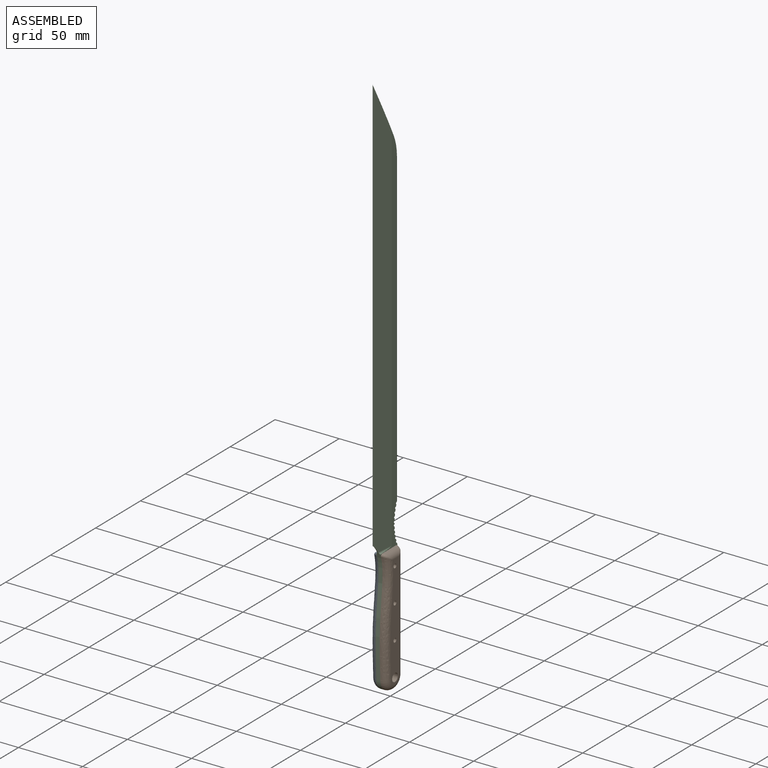
[diagram: assembled view]
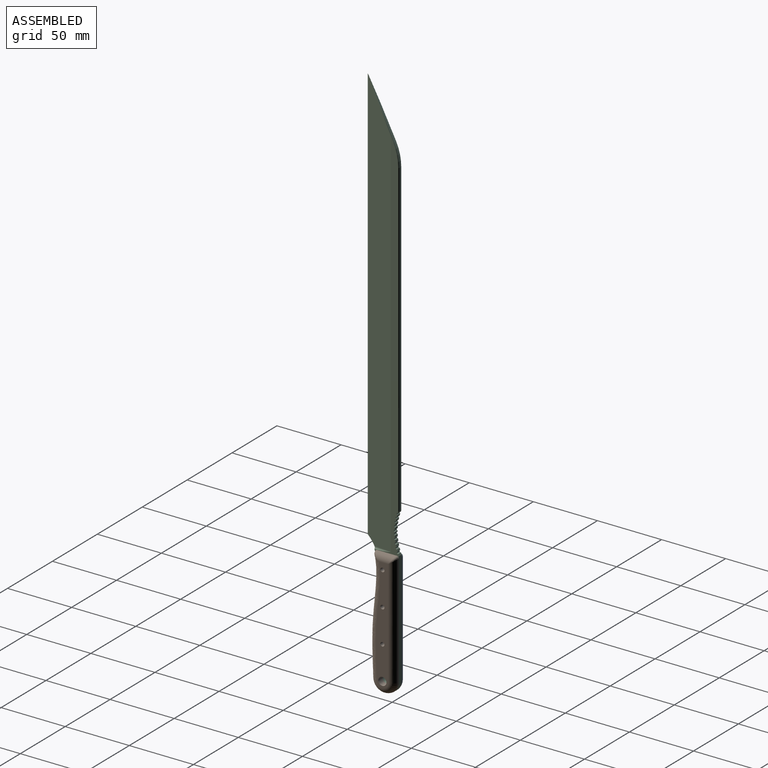
[diagram: assembled view, second angle]
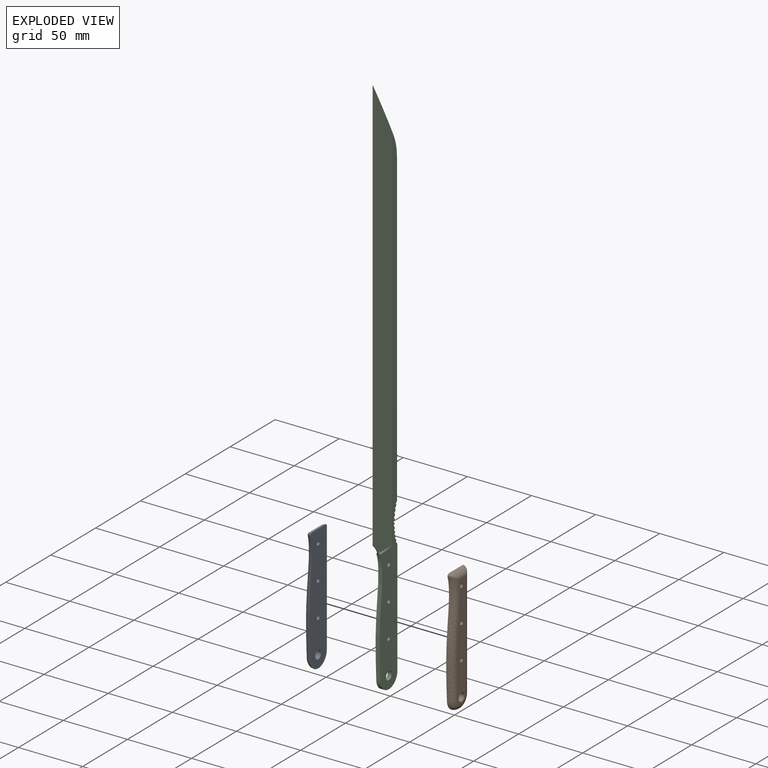
[diagram: exploded view]
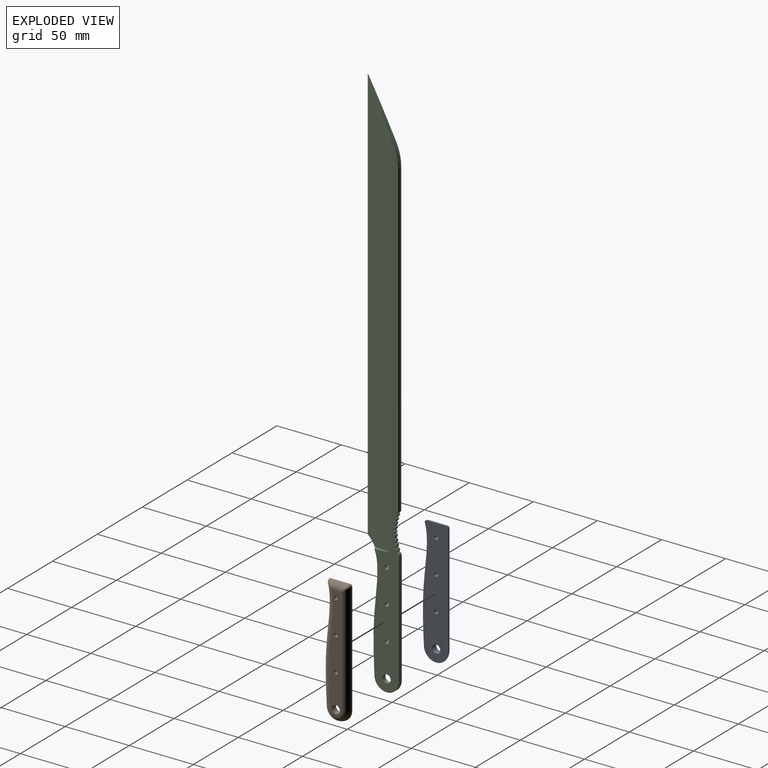
[diagram: exploded view, second angle]
ASSEMBLY  parts=3 mates=2
PART A: 13 faces, bbox 8.9x24.5x103.1 mm
  f0: plane 88.29x9.67mm, normal (-1,0,0), area 682.4mm2, adj f2,f3,f4,f5,f6,f7,f8,f9
  f1: plane 102.26x24.48mm, normal (1,0,0), area 1735.2mm2, adj f2,f3,f4,f5,f6,f7,f8,f9
  f2: cylinder r=1.59mm len=4.76mm, axis (1,0,0), area 47.5mm2, adj f0,f1
  f3: cylinder r=1.59mm len=4.76mm, axis (1,0,0), area 47.5mm2, adj f0,f1
  f4: cylinder r=1.59mm len=4.76mm, axis (1,0,0), area 47.5mm2, adj f0,f1
  f5: cylinder r=3.17mm len=6.35mm, axis (1,0,0), area 95mm2, adj f0,f1
  f6: torus R=4.45mm, axis (-1,0,0), area 183mm2, adj f0,f1,f7,f8
  f7: torus R=6.66mm, axis (1,0,0), area 1.1mm2, adj f0,f1,f6,f9
  f8: cylinder r=5.08mm len=87.31mm, axis (0,0,1), area 655.6mm2, adj f0,f1,f6,f10
  f9: bspline ~93.34x8.2mm, area 654.5mm2, adj f0,f1,f7,f11
  f10: bspline ~5.07x5.07mm, area 8.2mm2, adj f1,f8,f12
  f11: bspline ~6.02x5.07mm, area 10mm2, adj f1,f9,f12
  f12: cylinder r=5.08mm len=15.18mm, axis (0,1,0), area 86.1mm2, adj f0,f1,f10,f11
PART B: 12 faces, bbox 8.6x24.5x103.1 mm
  f0: plane 88.29x9.67mm, normal (1,0,0), area 682.4mm2, adj f2,f3,f4,f5,f7,f8,f10,f11
  f1: plane 102.27x24.48mm, normal (-1,0,0), area 1735.2mm2, adj f2,f3,f4,f5,f6,f7,f8,f9
  f2: cylinder r=1.59mm len=4.76mm, axis (-1,0,0), area 47.5mm2, adj f0,f1
  f3: cylinder r=1.59mm len=4.76mm, axis (-1,0,0), area 47.5mm2, adj f0,f1
  f4: cylinder r=1.59mm len=4.76mm, axis (-1,0,0), area 47.5mm2, adj f0,f1
  f5: cylinder r=3.17mm len=6.35mm, axis (-1,0,0), area 95mm2, adj f0,f1
  f6: bspline ~6.02x5.07mm, area 10mm2, adj f1,f7,f8
  f7: cylinder r=5.08mm len=15.18mm, axis (0,1,0), area 86.1mm2, adj f0,f1,f6,f9
  f8: bspline ~93.34x8.2mm, area 655.3mm2, adj f0,f1,f6,f10
  f9: bspline ~5.07x5.07mm, area 8.2mm2, adj f1,f7,f11
  f10: torus R=4.45mm, axis (-1,0,0), area 183.8mm2, adj f0,f1,f8,f11
  f11: cylinder r=5.08mm len=87.31mm, axis (0,0,-1), area 655.6mm2, adj f0,f1,f9,f10
PART C: 43 faces, bbox 5.4x28.6x431.9 mm
  f0: cylinder r=1.59mm len=3.18mm, axis (1,0,0), area 31.7mm2, adj f6,f7
  f1: cylinder r=1.59mm len=3.18mm, axis (1,0,0), area 31.7mm2, adj f6,f7
  f2: cylinder r=1.59mm len=3.18mm, axis (1,0,0), area 31.7mm2, adj f6,f7
  f3: extruded ~97.13x8.7mm, area 290.6mm2, adj f4,f6,f7,f32,f33,f34,f35
  f4: cylinder r=9.53mm len=19.05mm, axis (1,0,0), area 95mm2, adj f3,f5,f6,f7
  f5: plane 88.9x3.18mm, normal (0,1,0), area 282.3mm2, adj f4,f6,f7,f20
  f6: plane 391.93x20.84mm, normal (1,0,0), area 3284mm2, adj f0,f1,f2,f3,f4,f5,f9,f10
  f7: plane 391.93x20.84mm, normal (-1,0,0), area 3284mm2, adj f0,f1,f2,f3,f4,f5,f9,f10
  f8: cylinder r=41.27mm len=3.12mm, axis (1,0,0), area 4.3mm2, adj f18,f31,f37,f40
  f9: cylinder r=41.27mm len=3.18mm, axis (1,0,0), area 5mm2, adj f6,f7,f30,f31
  f10: cylinder r=41.27mm len=3.18mm, axis (1,0,0), area 5mm2, adj f6,f7,f29,f30
  f11: cylinder r=41.27mm len=3.18mm, axis (1,0,0), area 5mm2, adj f6,f7,f28,f29
  f12: cylinder r=41.27mm len=3.18mm, axis (1,0,0), area 5mm2, adj f6,f7,f27,f28
  f13: cylinder r=41.27mm len=3.18mm, axis (1,0,0), area 2.7mm2, adj f6,f7,f26,f27
  f14: cylinder r=41.27mm len=3.18mm, axis (1,0,0), area 5mm2, adj f6,f7,f25,f26
  f15: cylinder r=41.27mm len=3.18mm, axis (1,0,0), area 5mm2, adj f6,f7,f24,f25
  f16: cylinder r=41.27mm len=3.18mm, axis (1,0,0), area 5mm2, adj f6,f7,f23,f24
  f17: cylinder r=41.27mm len=3.18mm, axis (1,0,0), area 5mm2, adj f6,f7,f22,f23
  f18: plane 241.83x1.59mm, normal (0,1,0), area 383.9mm2, adj f8,f21,f37,f40
  f19: plane 42.76x21.38mm, normal (0,0.89,0.45), area 59mm2, adj f21,f32,f33,f39,f42
  f20: cylinder r=41.27mm len=3.18mm, axis (1,0,0), area 5mm2, adj f5,f6,f7,f22
  f21: cylinder r=38.1mm len=17.04mm, axis (-1,0,0), area 28mm2, adj f18,f19,f38,f41
  f22: cylinder r=0.79mm len=3.18mm, axis (1,0,0), area 8mm2, adj f6,f7,f17,f20
  f23: cylinder r=0.79mm len=3.18mm, axis (1,0,0), area 8mm2, adj f6,f7,f16,f17
  f24: cylinder r=0.79mm len=3.18mm, axis (1,0,0), area 8mm2, adj f6,f7,f15,f16
  f25: cylinder r=0.79mm len=3.18mm, axis (1,0,0), area 8mm2, adj f6,f7,f14,f15
  f26: cylinder r=0.79mm len=3.18mm, axis (1,0,0), area 8mm2, adj f6,f7,f13,f14
  f27: cylinder r=0.79mm len=3.18mm, axis (1,0,0), area 8mm2, adj f6,f7,f12,f13
  f28: cylinder r=0.79mm len=3.18mm, axis (1,0,0), area 8mm2, adj f6,f7,f11,f12
  f29: cylinder r=0.79mm len=3.18mm, axis (1,0,0), area 8mm2, adj f6,f7,f10,f11
  f30: cylinder r=0.79mm len=3.18mm, axis (1,0,0), area 8mm2, adj f6,f7,f9,f10
  f31: cylinder r=0.79mm len=3.18mm, axis (1,0,0), area 8mm2, adj f6,f7,f8,f9,f37,f40
  f32: plane 331.89x19.15mm, normal (1,-0.08,0), area 5953.6mm2, adj f3,f6,f19,f33,f34,f39
  f33: plane 331.86x19.11mm, normal (-1,-0.08,0), area 5953.6mm2, adj f3,f7,f19,f32,f35,f42
  f34: cylinder r=1.59mm len=13.56mm, axis (-0.08,-1,0), area 16.8mm2, adj f3,f6,f32
  f35: cylinder r=1.59mm len=13.56mm, axis (-0.08,1,0), area 16.8mm2, adj f3,f7,f33
  f36: cylinder r=3.17mm len=6.35mm, axis (1,0,0), area 63.3mm2, adj f6,f7
  f37: cylinder r=0.79mm len=243.31mm, axis (0,0,-1), area 302.4mm2, adj f6,f8,f18,f31,f38
  f38: torus R=37.31mm, axis (1,0,0), area 21.9mm2, adj f6,f21,f37,f39
  f39: cylinder r=0.79mm len=24.06mm, axis (0,-0.45,0.89), area 15.4mm2, adj f6,f19,f32,f38
  f40: cylinder r=0.79mm len=243.31mm, axis (0,0,1), area 302.4mm2, adj f7,f8,f18,f31,f41
  f41: torus R=37.31mm, axis (1,0,0), area 21.9mm2, adj f7,f21,f40,f42
  f42: cylinder r=0.79mm len=24.06mm, axis (0,0.45,-0.89), area 15.4mm2, adj f7,f19,f33,f41
PLACE A t=(-1.91,-5.43,17.37)mm
PLACE B t=(1.26,-5.43,17.37)mm
PLACE C t=(-0.33,-12.94,129.65)mm
MATE fastened C.f2 <-> B.f4  axis (1,0,0) through (1.26,-3.41,-63.24)mm
MATE fastened C.f0 <-> A.f2  axis (-1,0,0) through (-1.91,-3.41,-10.85)mm
